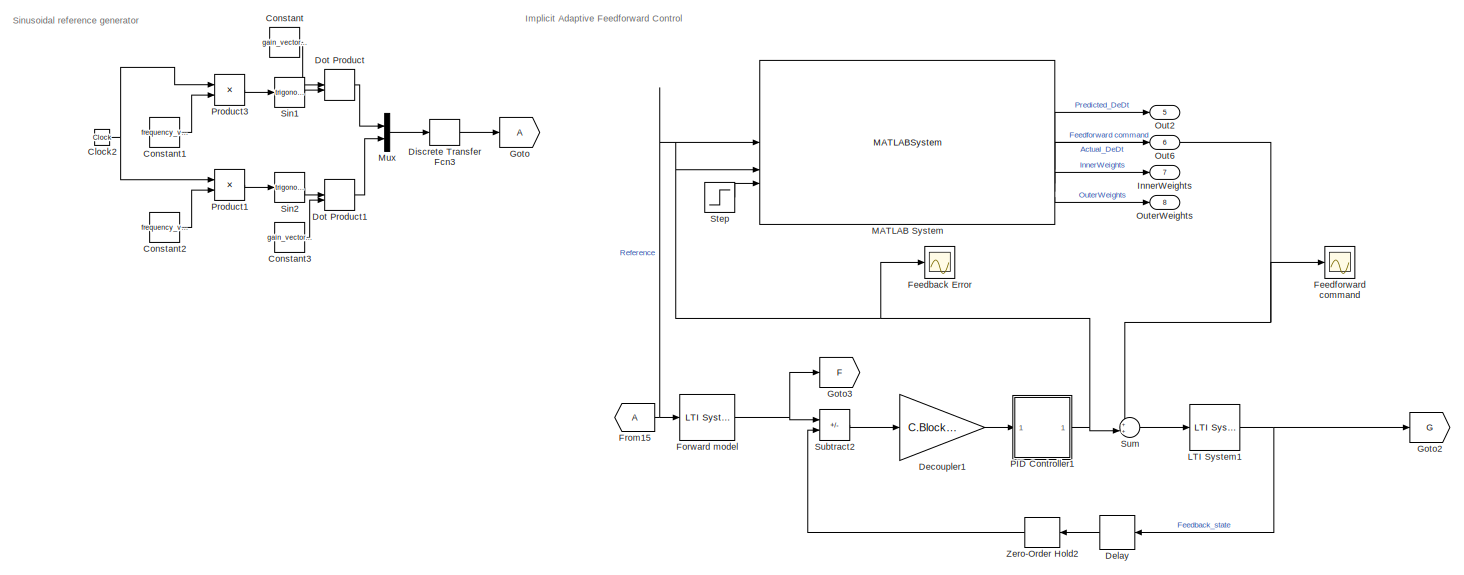
[diagram: root canvas - part 1/3, full width, top band]
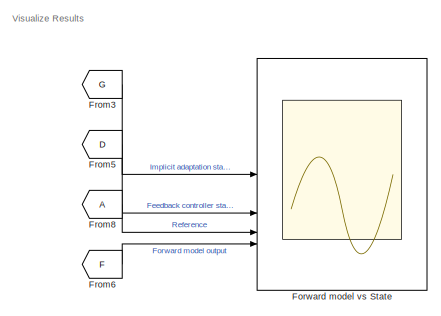
[diagram: root canvas - part 2/3, top right region]
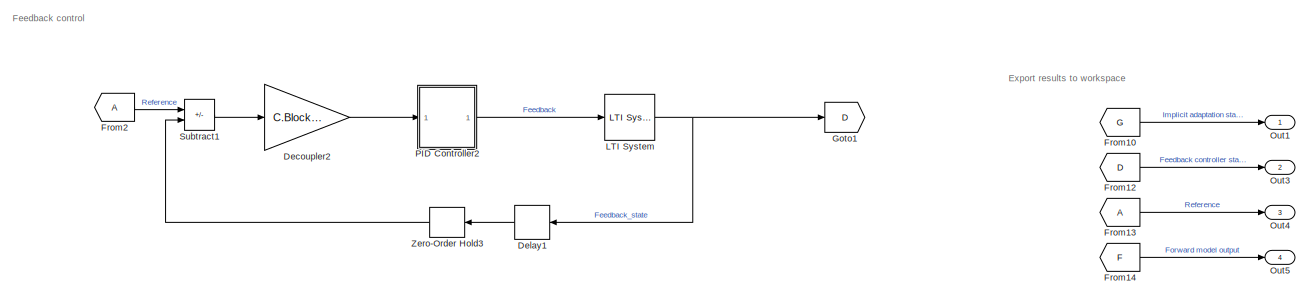
[diagram: root canvas - part 3/3, bottom center region]
MODEL slx_8531a775327a
KIND model
CONFIG AbsTol = auto
CONFIG EnableMultiTasking = off
CONFIG FixedStep = sim_time_step
CONFIG MaxStep = auto
CONFIG MinStep = auto
CONFIG RelTol = 1e-6
CONFIG SampleTimeConstraint = Unconstrained
CONFIG SolverName = ode45
CONFIG StartTime = 0.0
CONFIG StopTime = t_run
BLOCK [Clock] Clock2
BLOCK [Constant] Constant
  Value = gain_vector_1
BLOCK [Constant] Constant1
  Value = frequency_vector_1
BLOCK [Constant] Constant2
  Value = frequency_vector_2
BLOCK [Constant] Constant3
  Value = gain_vector_2
BLOCK [Gain] Decoupler1
  Gain = C.Blocks.Decoupler.Gain.Value
  Multiplication = Matrix(K*u) (u vector)
BLOCK [Gain] Decoupler2
  Gain = C.Blocks.Decoupler.Gain.Value
  Multiplication = Matrix(K*u) (u vector)
BLOCK [Delay] Delay
  DelayLength = 1
  InputPortMap = u0
  NameLocation = top
BLOCK [Delay] Delay1
  DelayLength = 1
  InputPortMap = u0
  NameLocation = top
BLOCK [DiscreteTransferFcn] Discrete Transfer Fcn3
  Denominator = [1]
  InputPortMap = u0
  SampleTime = sim_time_step
BLOCK [DotProduct] Dot Product
  OutDataTypeStr = Inherit: Inherit via internal rule
BLOCK [DotProduct] Dot Product1
  OutDataTypeStr = Inherit: Inherit via internal rule
BLOCK [Scope] Feedback Error
  Floating = off
  NumInputPorts = 1
  ScopeSpecificationString = Simulink.scopes.TimeScopeBlockCfg('CurrentConfiguration', extmgr.ConfigurationSet(extmgr.Configuration('Core','General UI',true),extmgr.Configuration('Core','Source UI',true),extmgr.Configuration('Sources','WiredSimulink',true,'DataLoggingVariableName','ScopeData1'),extmgr.Configuration('Visuals','Time Domain',true,'SerializedDisplays',{struct('MinYLimReal','-3.65634','MaxYLimReal','3.77587','YLab...<+1565ch>
BLOCK [Scope] Feedforward command
  Floating = off
  NumInputPorts = 1
  ScopeSpecificationString = Simulink.scopes.TimeScopeBlockCfg('CurrentConfiguration', extmgr.ConfigurationSet(extmgr.Configuration('Core','General UI',true),extmgr.Configuration('Core','Source UI',true),extmgr.Configuration('Sources','WiredSimulink',true,'DataLoggingVariableName','ScopeData1'),extmgr.Configuration('Visuals','Time Domain',true,'SerializedDisplays',{struct('MinYLimReal','-2.4783','MaxYLimReal','2.44778','YLabe...<+1580ch>
BLOCK [Reference] Forward model  REF=cstblocks/LTI System
  SourceBlock = cstblocks/LTI System
  SourceType = LTI Block
BLOCK [Scope] Forward model vs State
  Floating = off
  NumInputPorts = 4
  ScopeSpecificationString = Simulink.scopes.TimeScopeBlockCfg('CurrentConfiguration', extmgr.ConfigurationSet(extmgr.Configuration('Core','General UI',true),extmgr.Configuration('Core','Source UI',true),extmgr.Configuration('Sources','WiredSimulink',true,'DataLoggingVariableName','ScopeData6'),extmgr.Configuration('Visuals','Time Domain',true,'SerializedDisplays',{struct('MinYLimReal','-1.56309','MaxYLimReal','1.57441','YLab...<+1931ch>
BLOCK [From] From10
  GotoTag = G
BLOCK [From] From12
  GotoTag = D
BLOCK [From] From13
BLOCK [From] From14
  GotoTag = F
BLOCK [From] From15
BLOCK [From] From2
BLOCK [From] From3
  GotoTag = G
BLOCK [From] From5
  GotoTag = D
BLOCK [From] From6
  GotoTag = F
BLOCK [From] From8
BLOCK [Goto] Goto
BLOCK [Goto] Goto1
  GotoTag = D
BLOCK [Goto] Goto2
  GotoTag = G
BLOCK [Goto] Goto3
  GotoTag = F
BLOCK [Outport] InnerWeights
  Port = 7
BLOCK [Reference] LTI System  REF=cstblocks/LTI System
  SourceBlock = cstblocks/LTI System
  SourceType = LTI Block
BLOCK [Reference] LTI System1  REF=cstblocks/LTI System
  SourceBlock = cstblocks/LTI System
  SourceType = LTI Block
BLOCK [MATLABSystem] MATLAB System
  K = 2
  L = buffer_size
  M = 2
  MaskDisplay = disp(['Implicit Adaptive' char(10) ' Feedforward controller']);\nport_label('input',1,'in');\nport_label('input',2,'error');\nport_label('input',3,'adapt?');\nport_label('output',1,'Out');\nport_label('output',2,'Predicted de/dt');\nport_label('output',3,'Actual de/dt');\nport_label('output',4,'Estimated de/du');\nport_label('output',5,'Filter weights');
  MaskType = IAFF
  N = 2
  SimulateUsing = Code generation
  System = IAFF
  alpha_gradient = alpha_gradient
  alpha_reference = alpha_reference
  enableAdaptInput = on
  enableOutputDeDt = on
  enableOutputDeDu = on
  enableOutputWeights = on
  initialWeightsScale = initialWeightsScale
  initialWeightsSeed = initialWeightsSeed
  variable_type = double
BLOCK [Mux] Mux
  DisplayOption = bar
  Inputs = 2
BLOCK [Outport] Out1
  SignalName = implicit_state
BLOCK [Outport] Out2
  Port = 5
  SignalName = PredictedDeDt
BLOCK [Outport] Out3
  Port = 2
  SignalName = feedback_state
BLOCK [Outport] Out4
  Port = 3
  SignalName = reference
BLOCK [Outport] Out5
  Port = 4
  SignalName = forward_model
BLOCK [Outport] Out6
  Port = 6
  SignalName = ActualDeDt
BLOCK [Outport] OuterWeights
  Port = 8
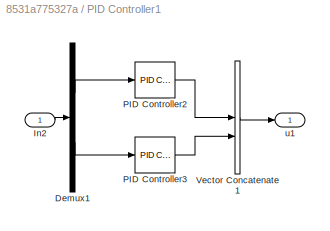
BLOCK [SubSystem] PID Controller1
BLOCK [Demux] PID Controller1/Demux1
  Outputs = 2
BLOCK [Inport] PID Controller1/In2
BLOCK [Reference] PID Controller1/PID Controller2  REF=slpidlib/PID Controller
  SourceBlock = slpidlib/PID Controller
  SourceType = PID 1dof
BLOCK [Reference] PID Controller1/PID Controller3  REF=slpidlib/PID Controller
  SourceBlock = slpidlib/PID Controller
  SourceType = PID 1dof
BLOCK [Concatenate] PID Controller1/Vector Concatenate1
BLOCK [Outport] PID Controller1/u1
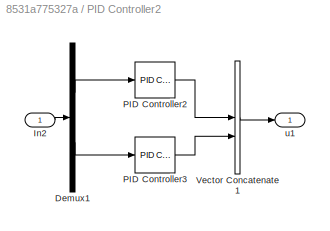
BLOCK [SubSystem] PID Controller2
BLOCK [Demux] PID Controller2/Demux1
  Outputs = 2
BLOCK [Inport] PID Controller2/In2
BLOCK [Reference] PID Controller2/PID Controller2  REF=slpidlib/PID Controller
  SourceBlock = slpidlib/PID Controller
  SourceType = PID 1dof
BLOCK [Reference] PID Controller2/PID Controller3  REF=slpidlib/PID Controller
  SourceBlock = slpidlib/PID Controller
  SourceType = PID 1dof
BLOCK [Concatenate] PID Controller2/Vector Concatenate1
BLOCK [Outport] PID Controller2/u1
BLOCK [Product] Product1
BLOCK [Product] Product3
BLOCK [Trigonometry] Sin1
BLOCK [Trigonometry] Sin2
BLOCK [Step] Step
  SampleTime = 0
  Time = 0
BLOCK [Sum] Subtract1
  IconShape = rectangular
  Inputs = +-
BLOCK [Sum] Subtract2
  IconShape = rectangular
  Inputs = +-
BLOCK [Sum] Sum
  Inputs = ++|
BLOCK [ZeroOrderHold] Zero-Order Hold2
  NameLocation = top
  SampleTime = sim_time_step
BLOCK [ZeroOrderHold] Zero-Order Hold3
  NameLocation = top
  SampleTime = sim_time_step
ANNOTATION (root): Export results to workspace
ANNOTATION (root): Feedback control
ANNOTATION (root): Implicit Adaptive Feedforward Control
ANNOTATION (root): Sinusoidal reference generator
ANNOTATION (root): Visualize Results
NET Clock2:1 -> Product1:1, Product3:1
LINE Constant1:1 -> Product3:2
LINE Constant2:1 -> Product1:2
LINE Constant3:1 -> Dot Product1:2
LINE Constant:1 -> Dot Product:1
LINE Decoupler1:1 -> PID Controller1:1
LINE Decoupler2:1 -> PID Controller2:1
LINE Delay1:1 -> Zero-Order Hold3:1
LINE Delay:1 -> Zero-Order Hold2:1
LINE Discrete Transfer Fcn3:1 -> Goto:1
LINE Dot Product1:1 -> Mux:2
LINE Dot Product:1 -> Mux:1
NET Forward model:1 -> Goto3:1, Subtract2:1
LINE From10:1 -> Out1:1
LINE From12:1 -> Out3:1
LINE From13:1 -> Out4:1
LINE From14:1 -> Out5:1
NET From15:1 -> Forward model:1, MATLAB System:1
LINE From2:1 -> Subtract1:1
LINE From3:1 -> Forward model vs State:1
LINE From5:1 -> Forward model vs State:2
LINE From6:1 -> Forward model vs State:4
LINE From8:1 -> Forward model vs State:3
NET LTI System1:1 -> Delay:1, Goto2:1
NET LTI System:1 -> Delay1:1, Goto1:1
NET MATLAB System:1 -> Feedforward command:1, Sum:1
LINE MATLAB System:2 -> Out2:1
LINE MATLAB System:3 -> Out6:1
LINE MATLAB System:4 -> InnerWeights:1
LINE MATLAB System:5 -> OuterWeights:1
LINE Mux:1 -> Discrete Transfer Fcn3:1
LINE PID Controller1/Demux1:1 -> PID Controller1/PID Controller2:1
LINE PID Controller1/Demux1:2 -> PID Controller1/PID Controller3:1
LINE PID Controller1/In2:1 -> PID Controller1/Demux1:1
LINE PID Controller1/PID Controller2:1 -> PID Controller1/Vector Concatenate1:1
LINE PID Controller1/PID Controller3:1 -> PID Controller1/Vector Concatenate1:2
LINE PID Controller1/Vector Concatenate1:1 -> PID Controller1/u1:1
NET PID Controller1:1 -> Feedback Error:1, MATLAB System:2, Sum:2
LINE PID Controller2/Demux1:1 -> PID Controller2/PID Controller2:1
LINE PID Controller2/Demux1:2 -> PID Controller2/PID Controller3:1
LINE PID Controller2/In2:1 -> PID Controller2/Demux1:1
LINE PID Controller2/PID Controller2:1 -> PID Controller2/Vector Concatenate1:1
LINE PID Controller2/PID Controller3:1 -> PID Controller2/Vector Concatenate1:2
LINE PID Controller2/Vector Concatenate1:1 -> PID Controller2/u1:1
LINE PID Controller2:1 -> LTI System:1
LINE Product1:1 -> Sin2:1
LINE Product3:1 -> Sin1:1
LINE Sin1:1 -> Dot Product:2
LINE Sin2:1 -> Dot Product1:1
LINE Step:1 -> MATLAB System:3
LINE Subtract1:1 -> Decoupler2:1
LINE Subtract2:1 -> Decoupler1:1
LINE Sum:1 -> LTI System1:1
LINE Zero-Order Hold2:1 -> Subtract2:2
LINE Zero-Order Hold3:1 -> Subtract1:2
note: NET lines group one-source signal fan-out (src -> all destinations, sorted); 1:1 wires keep LINE
